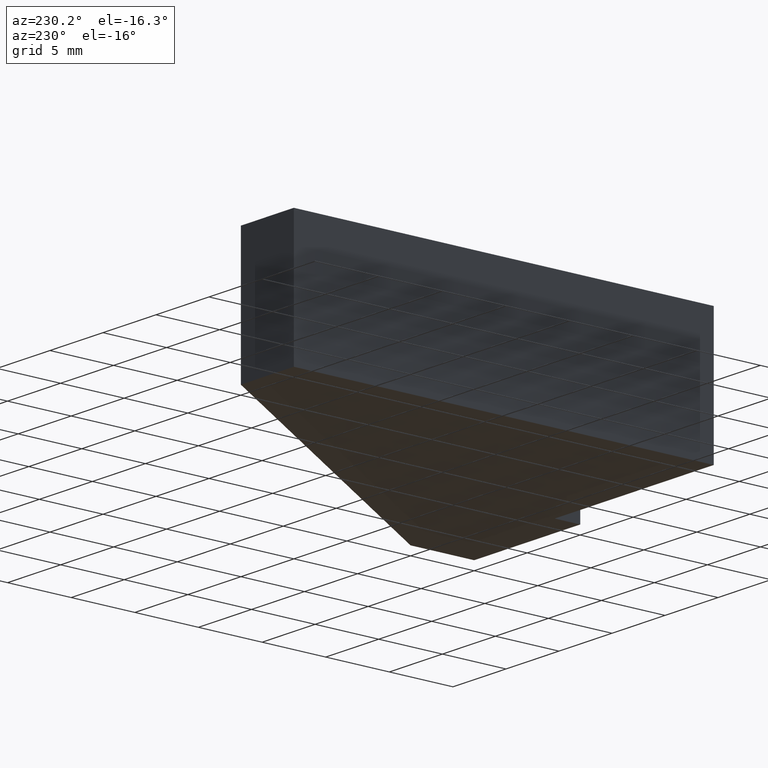
[diagram: clean part render]
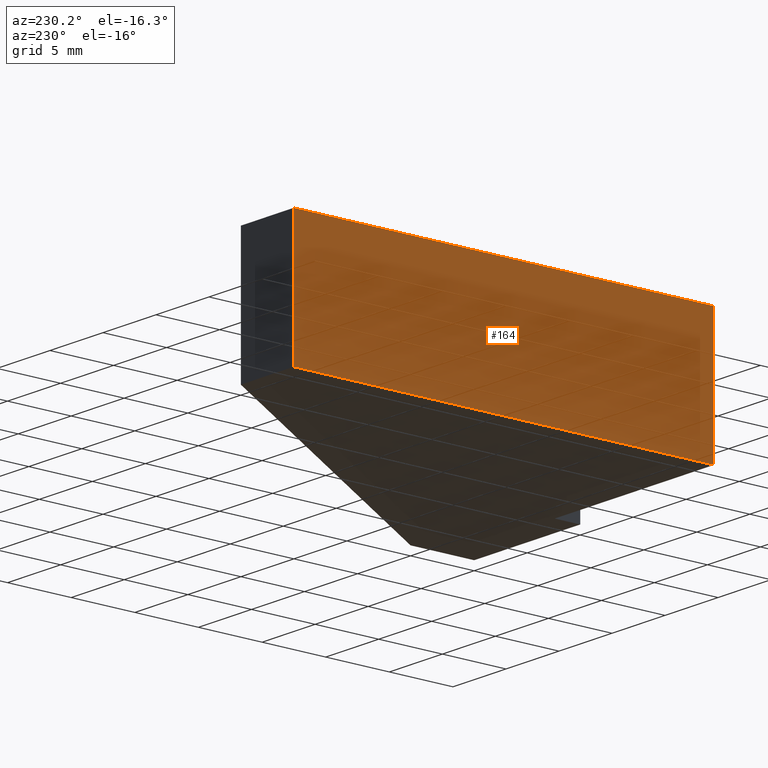
[diagram: same view with one face highlighted and labeled with its STEP entity id]
A machine part, auxiliary view. The second image highlights one B-rep face of the part: STEP entity #164.
In plain terms, the highlighted planar face has unit normal (-1, 0, 0).
Its self-contained STEP definition (entity closure, byte-faithful):
#18=FACE_OUTER_BOUND('',#27,.T.);
#27=EDGE_LOOP('',(#125,#126,#127,#128));
#37=LINE('',#252,#58);
#44=LINE('',#265,#65);
#45=LINE('',#268,#66);
#46=LINE('',#269,#67);
#58=VECTOR('',#207,10.);
#65=VECTOR('',#218,10.);
#66=VECTOR('',#221,10.);
#67=VECTOR('',#222,10.);
#79=VERTEX_POINT('',#249);
#80=VERTEX_POINT('',#251);
#84=VERTEX_POINT('',#263);
#85=VERTEX_POINT('',#267);
#93=EDGE_CURVE('',#80,#79,#37,.T.);
#100=EDGE_CURVE('',#84,#79,#44,.T.);
#101=EDGE_CURVE('',#84,#85,#45,.T.);
#102=EDGE_CURVE('',#85,#80,#46,.T.);
#125=ORIENTED_EDGE('',*,*,#101,.T.);
#126=ORIENTED_EDGE('',*,*,#102,.T.);
#127=ORIENTED_EDGE('',*,*,#93,.T.);
#128=ORIENTED_EDGE('',*,*,#100,.F.);
#155=PLANE('',#193);
#164=ADVANCED_FACE('',(#18),#155,.T.);
#193=AXIS2_PLACEMENT_3D('',#266,#219,#220);
#207=DIRECTION('',(0.,-1.,0.));
#218=DIRECTION('',(0.,0.,-1.));
#219=DIRECTION('center_axis',(-1.,0.,0.));
#220=DIRECTION('ref_axis',(0.,0.,1.));
#221=DIRECTION('',(0.,1.,0.));
#222=DIRECTION('',(0.,0.,-1.));
#249=CARTESIAN_POINT('',(-25.,2.,-5.));
#251=CARTESIAN_POINT('',(-25.,35.,-5.));
#252=CARTESIAN_POINT('',(-25.,2.,-5.));
#263=CARTESIAN_POINT('',(-25.,2.,5.));
#265=CARTESIAN_POINT('',(-25.,2.,0.));
#266=CARTESIAN_POINT('Origin',(-25.,2.,0.));
#267=CARTESIAN_POINT('',(-25.,35.,5.));
#268=CARTESIAN_POINT('',(-25.,2.,5.));
#269=CARTESIAN_POINT('',(-25.,35.,0.));